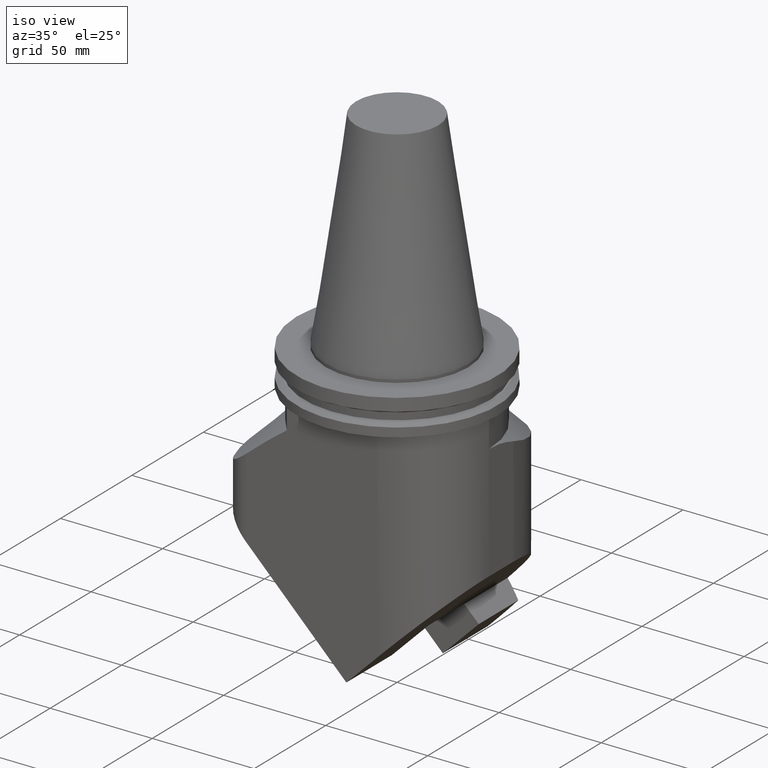
[diagram: clean part render]
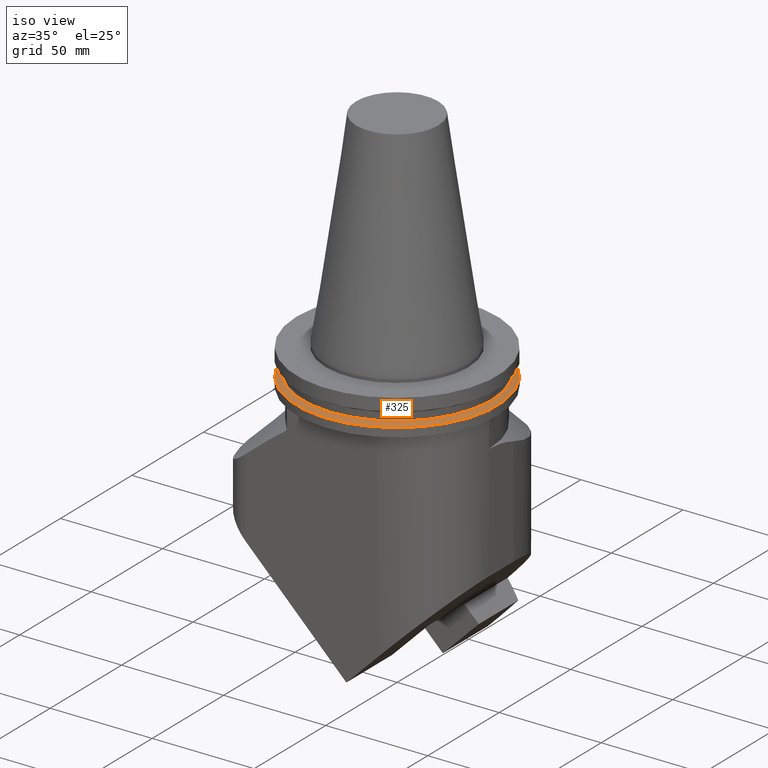
[diagram: same view with one face highlighted and labeled with its STEP entity id]
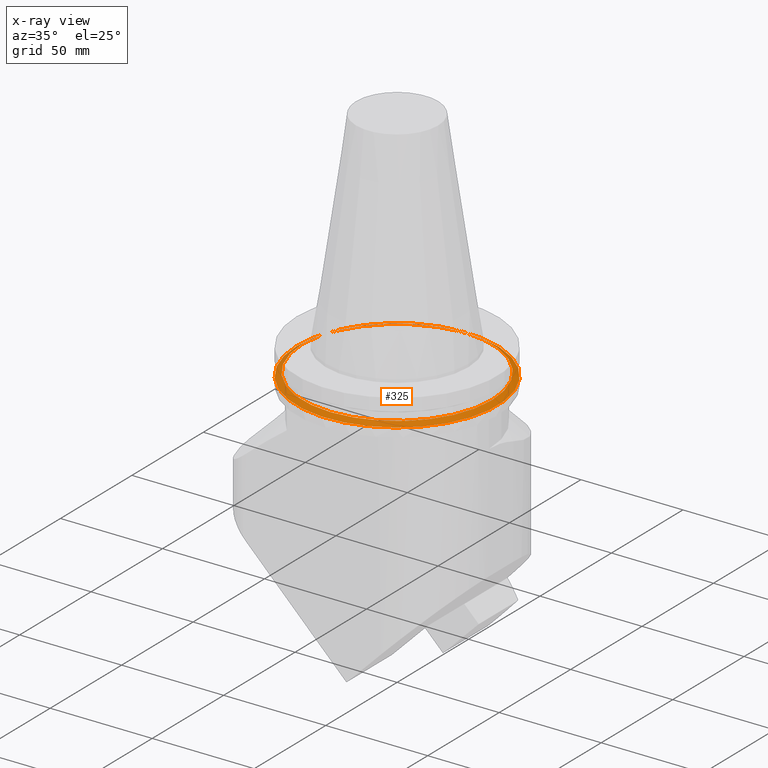
[diagram: x-ray of the same camera — body ghosted, the highlighted face saturated]
A machine part, iso view. The second image highlights one B-rep face of the part: STEP entity #325.
The next image is the same camera in x-ray: the body ghosted, the highlighted face saturated — about 3% of this face is hidden behind the body in this view.
In plain terms, the highlighted conical surface has half-angle 60 deg.
Its self-contained STEP definition (entity closure, byte-faithful):
#206=EDGE_CURVE('Unnamed[1]',#504,#504,#505,.T.);
#290=EDGE_CURVE('Unnamed[1]',#615,#615,#616,.T.);
#325=ADVANCED_FACE('Unnamed[1]',(#658,#659),#660,.T.);
#504=VERTEX_POINT('',#890);
#505=CIRCLE('',#891,49.2125);
#615=VERTEX_POINT('',#1131);
#616=CIRCLE('',#1132,46.43053755);
#658=FACE_BOUND('',#1194,.T.);
#659=FACE_BOUND('',#1195,.T.);
#660=CONICAL_SURFACE('',#1196,47.821518775,1.04719755103024);
#890=CARTESIAN_POINT('',(-49.2125,5.7880872763451E-015,-14.64616677));
#891=AXIS2_PLACEMENT_3D('',#1417,#1418,#1419);
#1131=CARTESIAN_POINT('',(-46.43053755,5.63368973077237E-015,-13.04));
#1132=AXIS2_PLACEMENT_3D('',#1526,#1527,#1528);
#1194=EDGE_LOOP('',(#1591));
#1195=EDGE_LOOP('',(#1592));
#1196=AXIS2_PLACEMENT_3D('',#1593,#1594,#1595);
#1417=CARTESIAN_POINT('',(1.79363812546588E-015,-3.25210231411077E-015,-14.64616677));
#1418=DIRECTION('',(1.22464679914735E-016,-2.22044604925031E-016,-1.0));
#1419=DIRECTION('',(-1.0,1.83697019872103E-016,-1.22464679914735E-016));
#1526=CARTESIAN_POINT('',(1.59693942608815E-015,-2.89546164822241E-015,-13.04));
#1527=DIRECTION('',(1.22464679914735E-016,-2.22044604925031E-016,-1.0));
#1528=DIRECTION('',(-1.0,1.83697019872103E-016,-1.22464679914735E-016));
#1591=ORIENTED_EDGE('',*,*,#206,.F.);
#1592=ORIENTED_EDGE('',*,*,#290,.T.);
#1593=CARTESIAN_POINT('',(1.69528877577701E-015,-3.07378198116659E-015,-13.843083385));
#1594=DIRECTION('',(1.22464679914735E-016,-2.22044604925031E-016,-1.0));
#1595=DIRECTION('',(-1.0,1.83697019872103E-016,-1.22464679914735E-016));